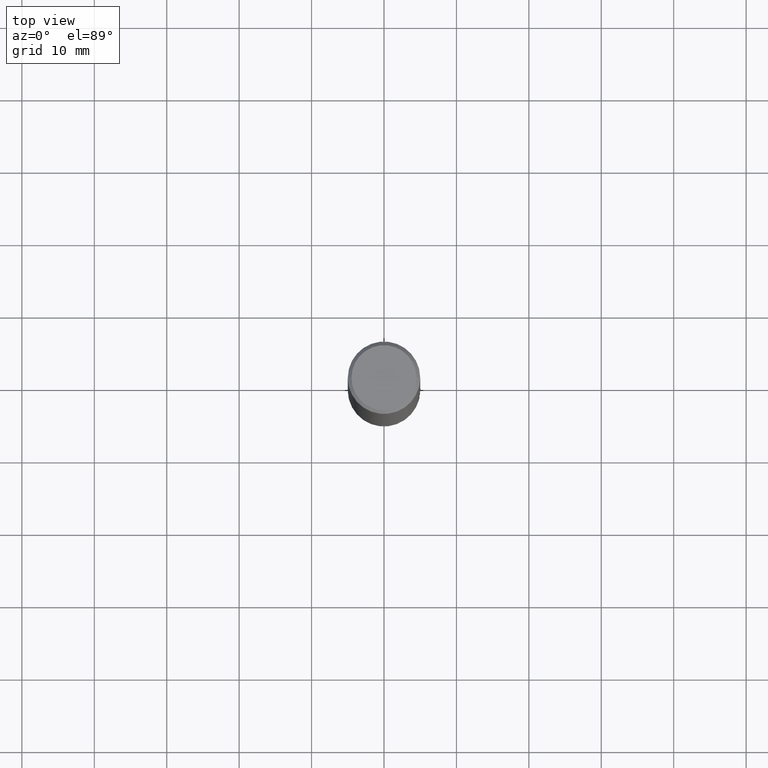
[diagram: clean part render]
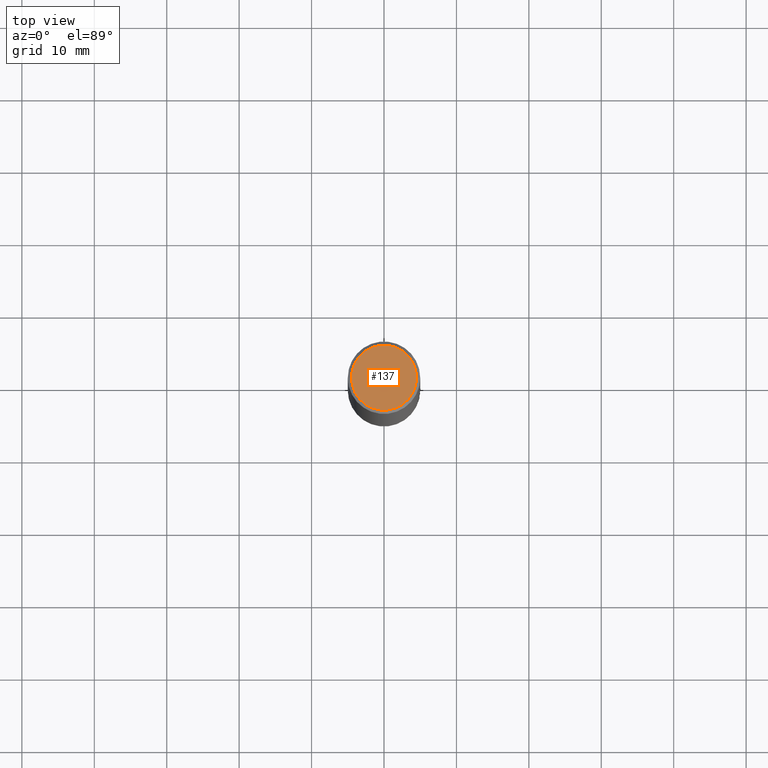
[diagram: same view with one face highlighted and labeled with its STEP entity id]
A machine part, top view. The second image highlights one B-rep face of the part: STEP entity #137.
In plain terms, the highlighted planar face has unit normal (0, -0, -1).
Its self-contained STEP definition (entity closure, byte-faithful):
#15 = EDGE_LOOP ( 'NONE', ( #164, #371 ) ) ;
#24 = EDGE_CURVE ( 'NONE', #106, #316, #143, .T. ) ;
#33 = DIRECTION ( 'NONE',  ( -2.445468806185136597E-29, 3.491481338843145583E-15, 1.000000000000000000 ) ) ;
#89 = PLANE ( 'NONE',  #412 ) ;
#106 = VERTEX_POINT ( 'NONE', #131 ) ;
#117 = DIRECTION ( 'NONE',  ( 1.000000000000000000, -6.982962677686266711E-15, 4.870572768024644616E-29 ) ) ;
#131 = CARTESIAN_POINT ( 'NONE',  ( 0.1768499999999998129, -1.316798864272041352E-15, 2.091571120149290674E-16 ) ) ;
#137 = ADVANCED_FACE ( 'NONE', ( #386 ), #89, .F. ) ;
#143 = CIRCLE ( 'NONE', #232, 0.1768499999999998129 ) ;
#164 = ORIENTED_EDGE ( 'NONE', *, *, #337, .T. ) ;
#177 = DIRECTION ( 'NONE',  ( -2.445468806185136597E-29, 3.491481338843145583E-15, 1.000000000000000000 ) ) ;
#179 = CARTESIAN_POINT ( 'NONE',  ( -5.114871930242576863E-45, 7.302681534864191472E-31, 2.091571120149201434E-16 ) ) ;
#203 = DIRECTION ( 'NONE',  ( 1.000000000000000000, -6.982962677686266711E-15, 4.870572768024644616E-29 ) ) ;
#212 = AXIS2_PLACEMENT_3D ( 'NONE', #179, #33, #203 ) ;
#217 = CARTESIAN_POINT ( 'NONE',  ( 1.234936949548814815E-15, 0.1768499999999998129, -5.128899187669496159E-16 ) ) ;
#232 = AXIS2_PLACEMENT_3D ( 'NONE', #284, #177, #117 ) ;
#235 = DIRECTION ( 'NONE',  ( -1.000000000000000000, 6.982962677686265922E-15, -4.876176775795935793E-29 ) ) ;
#254 = DIRECTION ( 'NONE',  ( 2.438088387897960049E-29, -3.491481338843145188E-15, -1.000000000000000000 ) ) ;
#267 = CIRCLE ( 'NONE', #212, 0.1768499999999998129 ) ;
#278 = CARTESIAN_POINT ( 'NONE',  ( -0.1768499999999998129, 1.269851762937247450E-15, 2.091571120149113920E-16 ) ) ;
#284 = CARTESIAN_POINT ( 'NONE',  ( -5.114871930242576863E-45, 7.302681534864191472E-31, 2.091571120149201434E-16 ) ) ;
#316 = VERTEX_POINT ( 'NONE', #278 ) ;
#337 = EDGE_CURVE ( 'NONE', #316, #106, #267, .T. ) ;
#371 = ORIENTED_EDGE ( 'NONE', *, *, #24, .T. ) ;
#386 = FACE_OUTER_BOUND ( 'NONE', #15, .T. ) ;
#412 = AXIS2_PLACEMENT_3D ( 'NONE', #217, #254, #235 ) ;